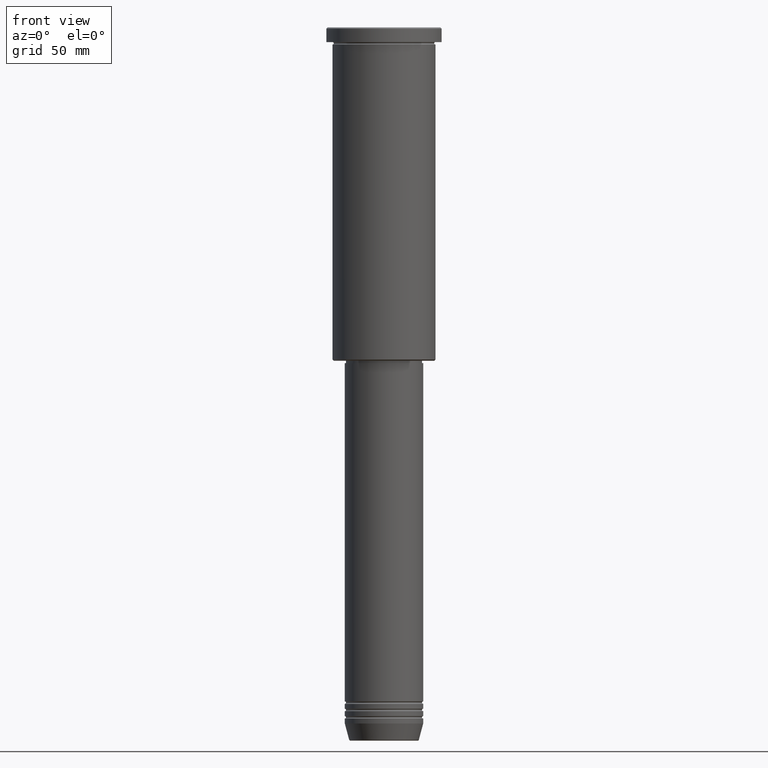
[diagram: clean part render]
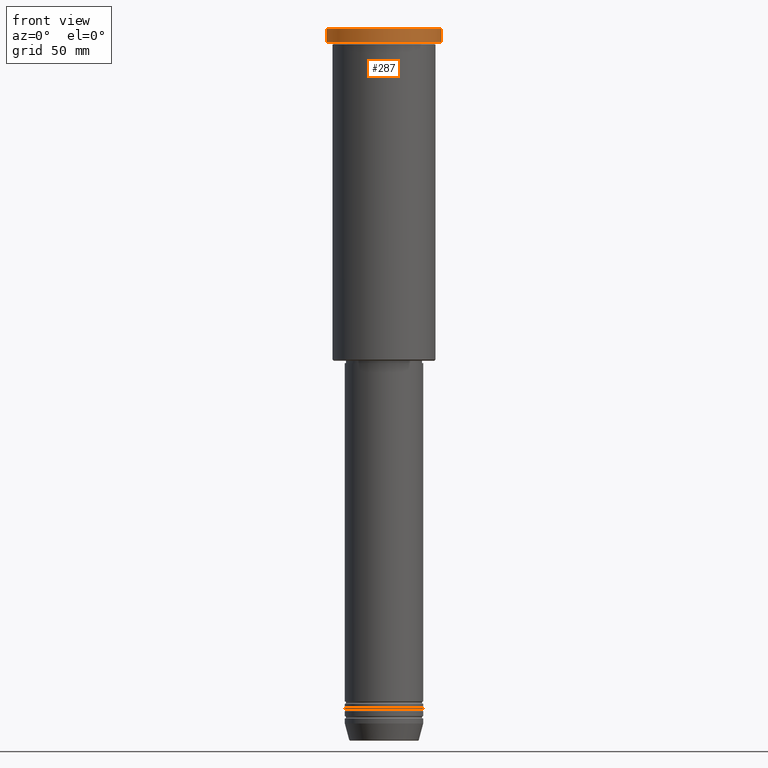
[diagram: same view with one face highlighted and labeled with its STEP entity id]
A machine part, front view. The second image highlights one B-rep face of the part: STEP entity #287.
In plain terms, the highlighted cylindrical surface (partial cylindrical patch) has radius 23.5 mm, axis along (-0, -0, 1).
Its self-contained STEP definition (entity closure, byte-faithful):
#92 = AXIS2_PLACEMENT_3D ( 'NONE', #114, #654, #936 ) ;
#107 = VECTOR ( 'NONE', #194, 1000.000000000000000 ) ;
#114 = CARTESIAN_POINT ( 'NONE',  ( 0.000000000000000000, 0.000000000000000000, -0.5000000000000281997 ) ) ;
#179 = EDGE_CURVE ( 'NONE', #1043, #1135, #553, .T. ) ;
#194 = DIRECTION ( 'NONE',  ( -0.000000000000000000, -0.000000000000000000, 1.000000000000000000 ) ) ;
#207 = EDGE_CURVE ( 'NONE', #1135, #415, #457, .T. ) ;
#209 = CARTESIAN_POINT ( 'NONE',  ( 23.50000000000000000, 0.000000000000000000, 0.000000000000000000 ) ) ;
#265 = CARTESIAN_POINT ( 'NONE',  ( -23.50000000000000000, 2.877919977996280320E-15, -5.999999999999994671 ) ) ;
#266 = EDGE_CURVE ( 'NONE', #990, #415, #483, .T. ) ;
#287 = ADVANCED_FACE ( 'NONE', ( #1108 ), #469, .T. ) ;
#293 = AXIS2_PLACEMENT_3D ( 'NONE', #1012, #1017, #775 ) ;
#342 = ORIENTED_EDGE ( 'NONE', *, *, #266, .F. ) ;
#415 = VERTEX_POINT ( 'NONE', #419 ) ;
#419 = CARTESIAN_POINT ( 'NONE',  ( -23.50000000000000000, 2.877919977996280320E-15, -0.5000000000000281997 ) ) ;
#457 = CIRCLE ( 'NONE', #92, 23.50000000000000000 ) ;
#469 = CYLINDRICAL_SURFACE ( 'NONE', #1067, 23.50000000000000000 ) ;
#483 = LINE ( 'NONE', #740, #107 ) ;
#493 = EDGE_LOOP ( 'NONE', ( #342, #511, #560, #873 ) ) ;
#511 = ORIENTED_EDGE ( 'NONE', *, *, #1146, .T. ) ;
#553 = LINE ( 'NONE', #209, #1145 ) ;
#560 = ORIENTED_EDGE ( 'NONE', *, *, #179, .T. ) ;
#561 = DIRECTION ( 'NONE',  ( 1.000000000000000000, 0.000000000000000000, 0.000000000000000000 ) ) ;
#654 = DIRECTION ( 'NONE',  ( 0.000000000000000000, 0.000000000000000000, -1.000000000000000000 ) ) ;
#660 = DIRECTION ( 'NONE',  ( -0.000000000000000000, -0.000000000000000000, 1.000000000000000000 ) ) ;
#666 = CARTESIAN_POINT ( 'NONE',  ( 23.50000000000000000, 0.000000000000000000, -0.5000000000000281997 ) ) ;
#740 = CARTESIAN_POINT ( 'NONE',  ( -23.50000000000000000, 2.877919977996280320E-15, 0.000000000000000000 ) ) ;
#775 = DIRECTION ( 'NONE',  ( 1.000000000000000000, 0.000000000000000000, 0.000000000000000000 ) ) ;
#804 = CIRCLE ( 'NONE', #293, 23.50000000000000000 ) ;
#837 = CARTESIAN_POINT ( 'NONE',  ( 0.000000000000000000, 0.000000000000000000, 0.000000000000000000 ) ) ;
#845 = DIRECTION ( 'NONE',  ( -0.000000000000000000, -0.000000000000000000, 1.000000000000000000 ) ) ;
#873 = ORIENTED_EDGE ( 'NONE', *, *, #207, .T. ) ;
#936 = DIRECTION ( 'NONE',  ( 1.000000000000000000, 0.000000000000000000, 0.000000000000000000 ) ) ;
#990 = VERTEX_POINT ( 'NONE', #265 ) ;
#997 = CARTESIAN_POINT ( 'NONE',  ( 23.50000000000000000, 0.000000000000000000, -5.999999999999994671 ) ) ;
#1012 = CARTESIAN_POINT ( 'NONE',  ( 0.000000000000000000, 0.000000000000000000, -5.999999999999994671 ) ) ;
#1017 = DIRECTION ( 'NONE',  ( -0.000000000000000000, -0.000000000000000000, 1.000000000000000000 ) ) ;
#1043 = VERTEX_POINT ( 'NONE', #997 ) ;
#1067 = AXIS2_PLACEMENT_3D ( 'NONE', #837, #660, #561 ) ;
#1108 = FACE_OUTER_BOUND ( 'NONE', #493, .T. ) ;
#1135 = VERTEX_POINT ( 'NONE', #666 ) ;
#1145 = VECTOR ( 'NONE', #845, 1000.000000000000000 ) ;
#1146 = EDGE_CURVE ( 'NONE', #990, #1043, #804, .T. ) ;